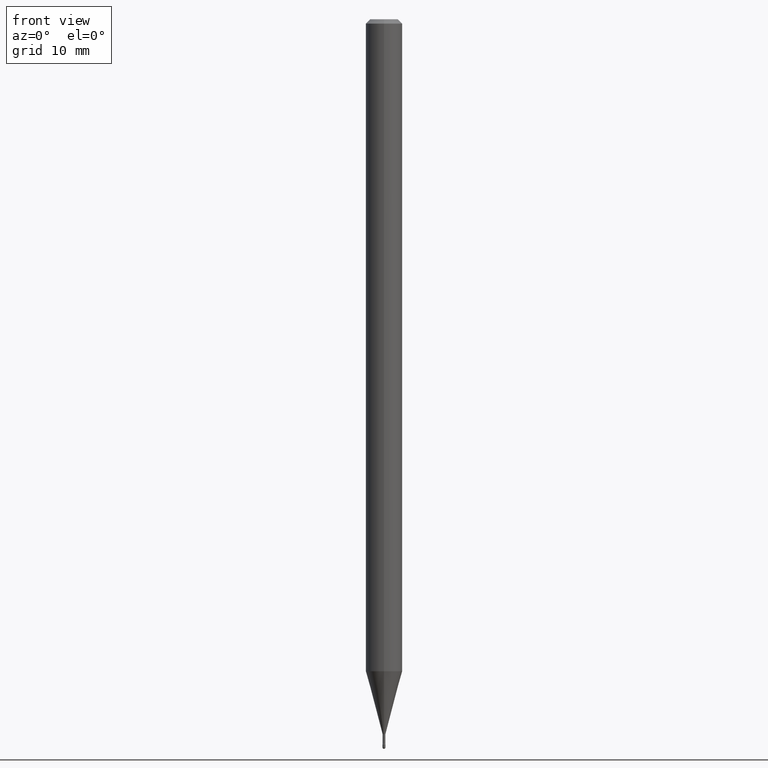
[diagram: clean part render]
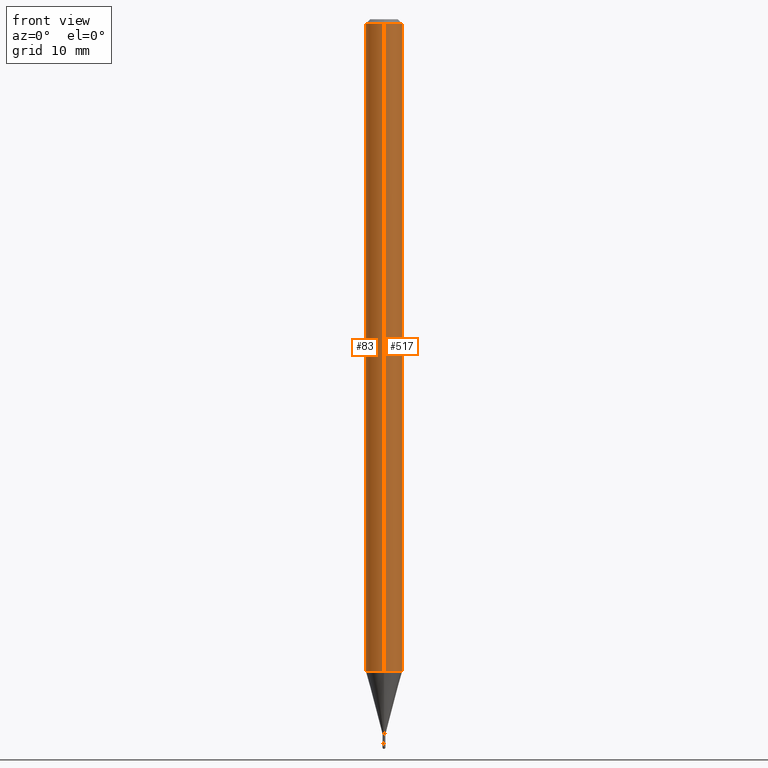
[diagram: same view with one multi-face feature highlighted, each face labeled with its STEP entity id]
A machine part, front view. The highlighted faces form ONE feature: a constant-radius fillet chain: 2 tangent blend faces with common blend radius 1.5875 mm. The faces share edges in the B-rep.
Their STEP definitions:
[1] entity #83 (Cylinder):
#6 = ORIENTED_EDGE ( 'NONE', *, *, #65, .F. ) ;
#23 = EDGE_CURVE ( 'NONE', #529, #78, #43, .T. ) ;
#40 = LINE ( 'NONE', #276, #482 ) ;
#43 = CIRCLE ( 'NONE', #413, 0.06250000000000000000 ) ;
#65 = EDGE_CURVE ( 'NONE', #126, #529, #40, .T. ) ;
#78 = VERTEX_POINT ( 'NONE', #341 ) ;
#83 = ADVANCED_FACE ( 'NONE', ( #466 ), #310, .T. ) ;
#121 = AXIS2_PLACEMENT_3D ( 'NONE', #252, #507, #244 ) ;
#123 = CARTESIAN_POINT ( 'NONE',  ( -4.364351673553916201E-16, -0.06250000000000000000, 6.963927563230838790E-16 ) ) ;
#124 = ORIENTED_EDGE ( 'NONE', *, *, #478, .T. ) ;
#126 = VERTEX_POINT ( 'NONE', #467 ) ;
#130 = CARTESIAN_POINT ( 'NONE',  ( -1.169113584055446105E-44, 1.669184350826100908E-30, 4.780733988912460139E-16 ) ) ;
#157 = DIRECTION ( 'NONE',  ( -2.444331714462359119E-29, 3.493109718909404657E-15, 1.000000000000000000 ) ) ;
#160 = EDGE_LOOP ( 'NONE', ( #6, #124, #347, #195 ) ) ;
#173 = DIRECTION ( 'NONE',  ( -2.444331714462359119E-29, 3.493109718909404263E-15, 1.000000000000000000 ) ) ;
#190 = VERTEX_POINT ( 'NONE', #375 ) ;
#195 = ORIENTED_EDGE ( 'NONE', *, *, #23, .F. ) ;
#200 = CIRCLE ( 'NONE', #121, 0.06250000000000000000 ) ;
#211 = CARTESIAN_POINT ( 'NONE',  ( 4.440892098501175406E-16, 0.06249999999999995143, -0.01500000000000030129 ) ) ;
#218 = DIRECTION ( 'NONE',  ( -2.444331714462359119E-29, 3.493109718909404657E-15, 1.000000000000000000 ) ) ;
#244 = DIRECTION ( 'NONE',  ( -6.982962677686265922E-15, -1.000000000000000000, 4.370956789862821150E-15 ) ) ;
#252 = CARTESIAN_POINT ( 'NONE',  ( 5.461339705824889483E-29, -7.804611252969332594E-15, -2.234287463322519596 ) ) ;
#276 = CARTESIAN_POINT ( 'NONE',  ( 4.440892098500625669E-16, 0.06250000000000000000, 2.597540414594082475E-16 ) ) ;
#285 = LINE ( 'NONE', #123, #500 ) ;
#298 = DIRECTION ( 'NONE',  ( -6.982962677686265922E-15, -1.000000000000000000, 3.493109718909404263E-15 ) ) ;
#310 = CYLINDRICAL_SURFACE ( 'NONE', #371, 0.06250000000000000000 ) ;
#329 = DIRECTION ( 'NONE',  ( -6.982962677686265922E-15, -1.000000000000000000, 3.483106191921935554E-15 ) ) ;
#341 = CARTESIAN_POINT ( 'NONE',  ( -4.364351673553912750E-16, -0.06250000000000005551, -0.01499999999999986587 ) ) ;
#346 = DIRECTION ( 'NONE',  ( -2.444331714462359119E-29, 3.493109718909404263E-15, 1.000000000000000000 ) ) ;
#347 = ORIENTED_EDGE ( 'NONE', *, *, #535, .T. ) ;
#371 = AXIS2_PLACEMENT_3D ( 'NONE', #130, #218, #298 ) ;
#375 = CARTESIAN_POINT ( 'NONE',  ( -4.364351673553370901E-16, -0.06250000000000781319, -2.234287463322519152 ) ) ;
#413 = AXIS2_PLACEMENT_3D ( 'NONE', #545, #157, #329 ) ;
#466 = FACE_OUTER_BOUND ( 'NONE', #160, .T. ) ;
#467 = CARTESIAN_POINT ( 'NONE',  ( 4.440892098501170476E-16, 0.06249999999999218681, -2.234287463322519596 ) ) ;
#478 = EDGE_CURVE ( 'NONE', #126, #190, #200, .T. ) ;
#482 = VECTOR ( 'NONE', #346, 39.37007874015748143 ) ;
#500 = VECTOR ( 'NONE', #173, 39.37007874015748143 ) ;
#507 = DIRECTION ( 'NONE',  ( -2.444331714462359119E-29, 3.493109718909404657E-15, 1.000000000000000000 ) ) ;
#529 = VERTEX_POINT ( 'NONE', #211 ) ;
#535 = EDGE_CURVE ( 'NONE', #190, #78, #285, .T. ) ;
#545 = CARTESIAN_POINT ( 'NONE',  ( 3.666497571693559050E-31, -5.239664578364136248E-17, -0.01500000000000008271 ) ) ;
[2] entity #517 (Cylinder):
#28 = ORIENTED_EDGE ( 'NONE', *, *, #309, .F. ) ;
#29 = DIRECTION ( 'NONE',  ( -6.982962677686265922E-15, -1.000000000000000000, 4.370956789862821150E-15 ) ) ;
#37 = AXIS2_PLACEMENT_3D ( 'NONE', #321, #152, #542 ) ;
#40 = LINE ( 'NONE', #276, #482 ) ;
#54 = EDGE_CURVE ( 'NONE', #190, #126, #556, .T. ) ;
#63 = DIRECTION ( 'NONE',  ( -2.444331714462359119E-29, 3.493109718909404657E-15, 1.000000000000000000 ) ) ;
#65 = EDGE_CURVE ( 'NONE', #126, #529, #40, .T. ) ;
#78 = VERTEX_POINT ( 'NONE', #341 ) ;
#123 = CARTESIAN_POINT ( 'NONE',  ( -4.364351673553916201E-16, -0.06250000000000000000, 6.963927563230838790E-16 ) ) ;
#126 = VERTEX_POINT ( 'NONE', #467 ) ;
#152 = DIRECTION ( 'NONE',  ( -2.444331714462359119E-29, 3.493109718909404657E-15, 1.000000000000000000 ) ) ;
#161 = DIRECTION ( 'NONE',  ( -2.444331714462359119E-29, 3.493109718909404657E-15, 1.000000000000000000 ) ) ;
#173 = DIRECTION ( 'NONE',  ( -2.444331714462359119E-29, 3.493109718909404263E-15, 1.000000000000000000 ) ) ;
#190 = VERTEX_POINT ( 'NONE', #375 ) ;
#211 = CARTESIAN_POINT ( 'NONE',  ( 4.440892098501175406E-16, 0.06249999999999995143, -0.01500000000000030129 ) ) ;
#231 = ORIENTED_EDGE ( 'NONE', *, *, #65, .T. ) ;
#245 = CARTESIAN_POINT ( 'NONE',  ( 5.461339705824889483E-29, -7.804611252969332594E-15, -2.234287463322519596 ) ) ;
#249 = DIRECTION ( 'NONE',  ( -6.982962677686265922E-15, -1.000000000000000000, 3.493109718909404263E-15 ) ) ;
#259 = EDGE_LOOP ( 'NONE', ( #523, #231, #28, #280 ) ) ;
#276 = CARTESIAN_POINT ( 'NONE',  ( 4.440892098500625669E-16, 0.06250000000000000000, 2.597540414594082475E-16 ) ) ;
#280 = ORIENTED_EDGE ( 'NONE', *, *, #535, .F. ) ;
#285 = LINE ( 'NONE', #123, #500 ) ;
#288 = CIRCLE ( 'NONE', #37, 0.06250000000000000000 ) ;
#308 = AXIS2_PLACEMENT_3D ( 'NONE', #245, #63, #29 ) ;
#309 = EDGE_CURVE ( 'NONE', #78, #529, #288, .T. ) ;
#321 = CARTESIAN_POINT ( 'NONE',  ( 3.666497571693559050E-31, -5.239664578364136248E-17, -0.01500000000000008271 ) ) ;
#341 = CARTESIAN_POINT ( 'NONE',  ( -4.364351673553912750E-16, -0.06250000000000005551, -0.01499999999999986587 ) ) ;
#346 = DIRECTION ( 'NONE',  ( -2.444331714462359119E-29, 3.493109718909404263E-15, 1.000000000000000000 ) ) ;
#373 = CYLINDRICAL_SURFACE ( 'NONE', #538, 0.06250000000000000000 ) ;
#375 = CARTESIAN_POINT ( 'NONE',  ( -4.364351673553370901E-16, -0.06250000000000781319, -2.234287463322519152 ) ) ;
#415 = FACE_OUTER_BOUND ( 'NONE', #259, .T. ) ;
#467 = CARTESIAN_POINT ( 'NONE',  ( 4.440892098501170476E-16, 0.06249999999999218681, -2.234287463322519596 ) ) ;
#468 = CARTESIAN_POINT ( 'NONE',  ( -1.169113584055446105E-44, 1.669184350826100908E-30, 4.780733988912460139E-16 ) ) ;
#482 = VECTOR ( 'NONE', #346, 39.37007874015748143 ) ;
#500 = VECTOR ( 'NONE', #173, 39.37007874015748143 ) ;
#517 = ADVANCED_FACE ( 'NONE', ( #415 ), #373, .T. ) ;
#523 = ORIENTED_EDGE ( 'NONE', *, *, #54, .T. ) ;
#529 = VERTEX_POINT ( 'NONE', #211 ) ;
#535 = EDGE_CURVE ( 'NONE', #190, #78, #285, .T. ) ;
#538 = AXIS2_PLACEMENT_3D ( 'NONE', #468, #161, #249 ) ;
#542 = DIRECTION ( 'NONE',  ( -6.982962677686265922E-15, -1.000000000000000000, 3.483106191921935554E-15 ) ) ;
#556 = CIRCLE ( 'NONE', #308, 0.06250000000000000000 ) ;